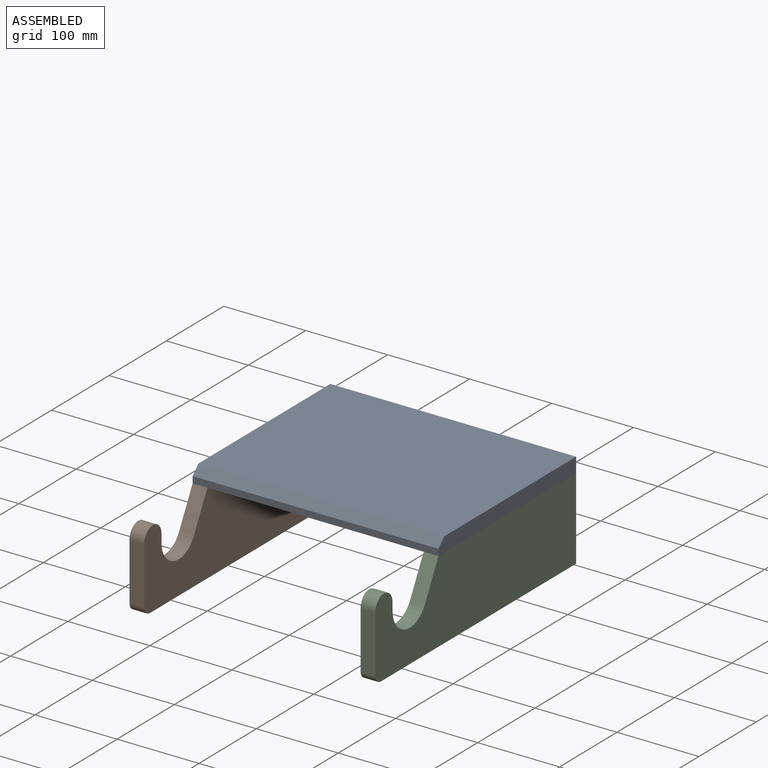
[diagram: assembled view]
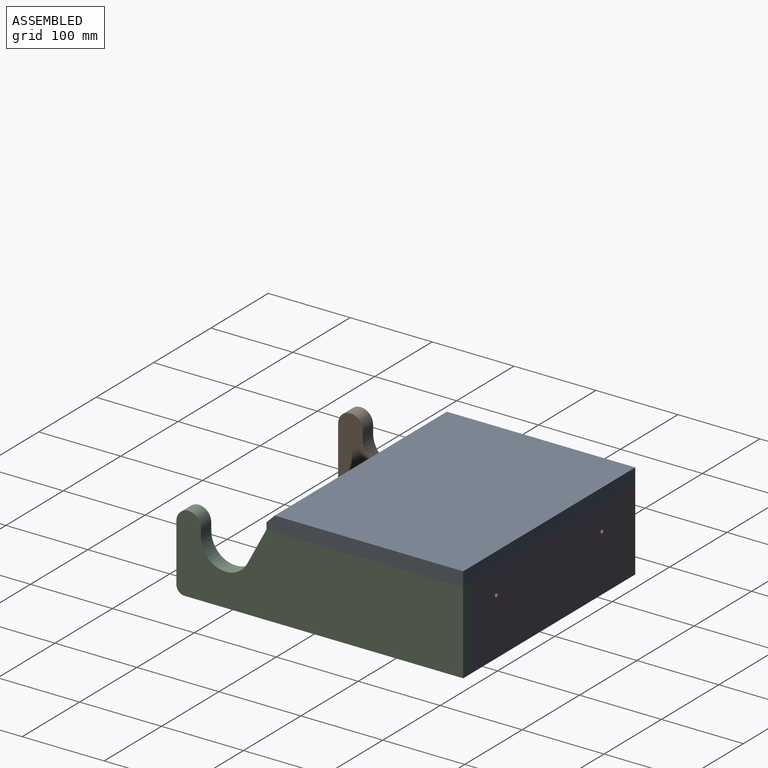
[diagram: assembled view, second angle]
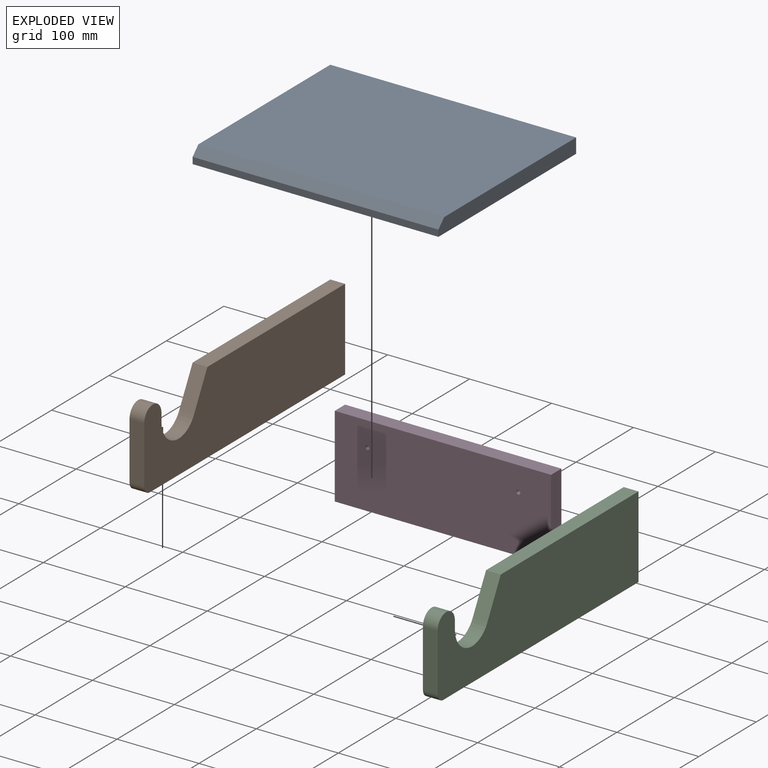
[diagram: exploded view]
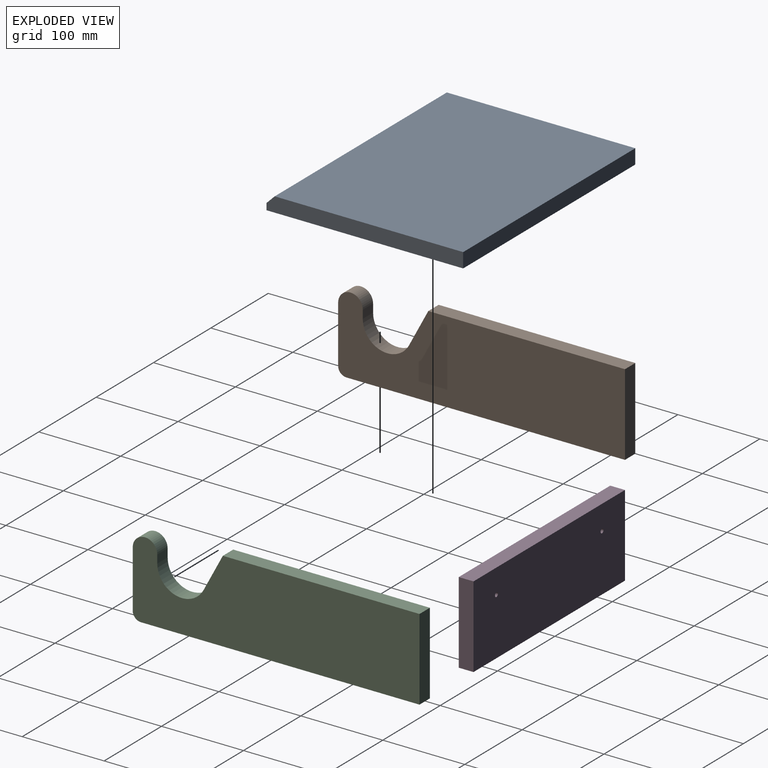
[diagram: exploded view, second angle]
ASSEMBLY  parts=4 mates=3
PART A: 7 faces, bbox 300x240x18 mm
  f0: plane 300x18mm, normal (0,1,0), area 5400mm2, adj f1,f3,f4,f5
  f1: plane 240x18mm, normal (-1,0,0), area 4270mm2, adj f0,f2,f4,f5,f6
  f2: plane 300x8mm, normal (0,-1,0), area 2400mm2, adj f1,f3,f5,f6
  f3: plane 240x18mm, normal (1,0,0), area 4270mm2, adj f0,f2,f4,f5,f6
  f4: plane 300x230mm, normal (0,0,1), area 69000mm2, adj f0,f1,f3,f6
  f5: plane 300x240mm, normal (0,0,-1), area 72000mm2, adj f0,f1,f2,f3
  f6: plane 300x10mm, normal (0,-0.71,0.71), area 4242.6mm2, adj f1,f2,f3,f4
PART B: 11 faces, bbox 18x350x100 mm
  f0: cylinder r=10mm len=18mm, axis (-1,0,0), area 282.7mm2, adj f1,f8,f9,f10
  f1: plane 340x18mm, normal (0,0,-1), area 6120mm2, adj f0,f2,f9,f10
  f2: plane 100x18mm, normal (0,1,0), area 1800mm2, adj f1,f3,f9,f10
  f3: plane 240x18mm, normal (0,0,1), area 4320mm2, adj f2,f4,f9,f10
  f4: plane 44.12x23.53mm, normal (0,-0.88,0.47), area 900mm2, adj f3,f5,f9,f10
  f5: cylinder r=30mm len=56.47mm, axis (-1,0,0), area 1431.9mm2, adj f4,f6,f9,f10
  f6: plane 18x10mm, normal (0,1,0), area 180mm2, adj f5,f7,f9,f10
  f7: cylinder r=15mm len=30mm, axis (-1,0,0), area 848.2mm2, adj f6,f8,f9,f10
  f8: plane 70x18mm, normal (0,-1,0), area 1260mm2, adj f0,f7,f9,f10
  f9: plane 350x100mm, normal (1,0,0), area 31138.7mm2, adj f0,f1,f2,f3,f4,f5,f6,f7
  f10: plane 350x100mm, normal (-1,0,0), area 31138.7mm2, adj f0,f1,f2,f3,f4,f5,f6,f7
PART C: same geometry as B
PART D: 8 faces, bbox 264x18x100 mm
  f0: plane 100x18mm, normal (1,0,0), area 1800mm2, adj f1,f3,f4,f5
  f1: plane 264x18mm, normal (0,0,1), area 4752mm2, adj f0,f2,f4,f5
  f2: plane 100x18mm, normal (-1,0,0), area 1800mm2, adj f1,f3,f4,f5
  f3: plane 264x18mm, normal (0,0,-1), area 4752mm2, adj f0,f2,f4,f5
  f4: plane 264x100mm, normal (0,-1,0), area 26360.7mm2, adj f0,f1,f2,f3,f6,f7
  f5: plane 264x100mm, normal (0,1,0), area 26360.7mm2, adj f0,f1,f2,f3,f6,f7
  f6: cylinder r=2.5mm len=18mm, axis (0,1,0), area 282.7mm2, adj f4,f5
  f7: cylinder r=2.5mm len=18mm, axis (0,1,0), area 282.7mm2, adj f4,f5
PLACE A t=(187.13,158.51,36.29)mm
PLACE B t=(-153.36,-189.32,9.21)mm
PLACE C t=(128.64,-189.32,9.21)mm
PLACE D t=(154.83,-9.24,7.25)mm fixed
MATE planar B.f3 <-> A.f5  axis (0,0,1) through (-153.36,-9.24,36.29)mm
MATE planar D.f0 <-> C.f10  axis (1,0,0) through (128.64,-9.24,36.29)mm
MATE planar D.f2 <-> B.f9  axis (-1,0,0) through (-135.36,-9.24,36.29)mm
